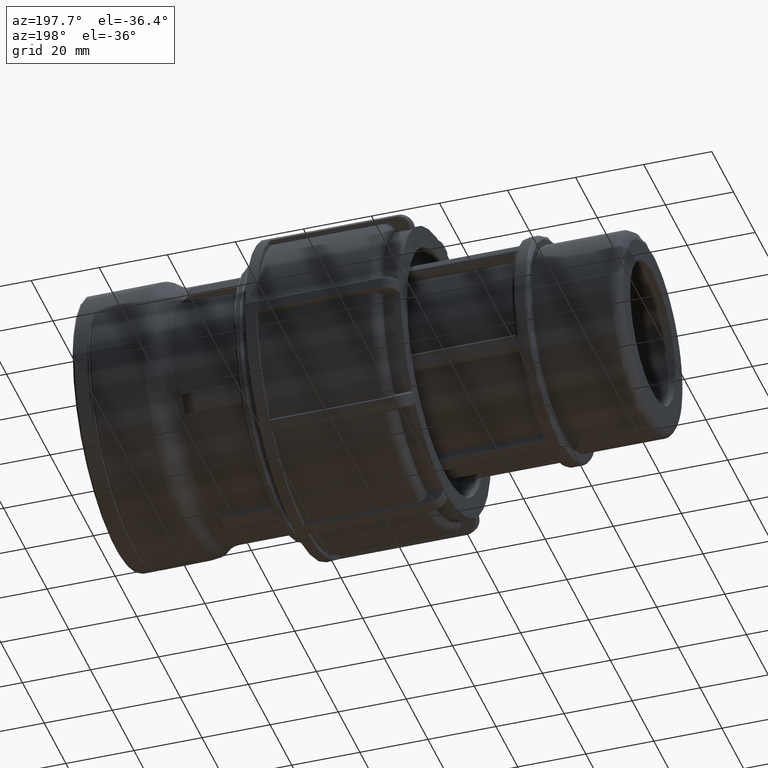
[diagram: clean part render]
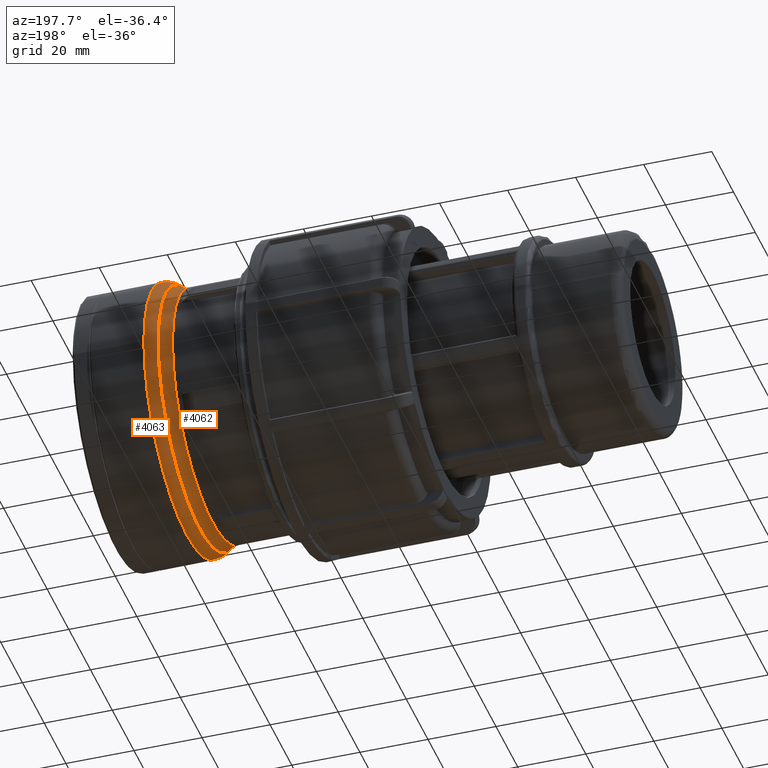
[diagram: same view with one multi-face feature highlighted, each face labeled with its STEP entity id]
A machine part, auxiliary view. The highlighted faces form ONE feature: a constant-radius fillet chain: 2 tangent blend faces with common blend radius 5.6656 mm. The faces share edges in the B-rep.
Their STEP definitions:
[1] entity #4062 (Torus):
#55=FACE_BOUND('',#1068,.T.);
#819=FACE_OUTER_BOUND('',#1067,.T.);
#1067=EDGE_LOOP('',(#3096));
#1068=EDGE_LOOP('',(#3097));
#1473=CIRCLE('',#4326,36.8264);
#1484=CIRCLE('',#4372,38.2428);
#1791=VERTEX_POINT('',#6424);
#1815=VERTEX_POINT('',#6694);
#2242=EDGE_CURVE('',#1791,#1791,#1473,.T.);
#2295=EDGE_CURVE('',#1815,#1815,#1484,.T.);
#3096=ORIENTED_EDGE('',*,*,#2242,.T.);
#3097=ORIENTED_EDGE('',*,*,#2295,.T.);
#3973=TOROIDAL_SURFACE('',#4371,42.492,5.6656);
#4062=ADVANCED_FACE('',(#819,#55),#3973,.F.);
#4326=AXIS2_PLACEMENT_3D('',#6425,#4933,#4934);
#4371=AXIS2_PLACEMENT_3D('',#6693,#5051,#5052);
#4372=AXIS2_PLACEMENT_3D('',#6695,#5053,#5054);
#4933=DIRECTION('center_axis',(1.,0.,0.));
#4934=DIRECTION('ref_axis',(0.,1.,-6.12323399573677E-17));
#5051=DIRECTION('center_axis',(1.,0.,0.));
#5052=DIRECTION('ref_axis',(0.,0.,-1.));
#5053=DIRECTION('center_axis',(-1.,0.,0.));
#5054=DIRECTION('ref_axis',(0.,1.,-6.12323399573677E-17));
#6424=CARTESIAN_POINT('',(-28.5883307863026,-36.8264,-2.254966644206E-15));
#6425=CARTESIAN_POINT('Origin',(-28.5883307863026,0.,0.));
#6693=CARTESIAN_POINT('Origin',(-28.5883307863026,0.,0.));
#6694=CARTESIAN_POINT('',(-24.8408886293108,-38.2428,7.02508839156486E-15));
#6695=CARTESIAN_POINT('Origin',(-24.8408886293108,0.,0.));
[2] entity #4063 (Torus):
#56=FACE_BOUND('',#1070,.T.);
#820=FACE_OUTER_BOUND('',#1069,.T.);
#1069=EDGE_LOOP('',(#3098));
#1070=EDGE_LOOP('',(#3099));
#1484=CIRCLE('',#4372,38.2428);
#1485=CIRCLE('',#4374,39.6592);
#1815=VERTEX_POINT('',#6694);
#1816=VERTEX_POINT('',#6697);
#2295=EDGE_CURVE('',#1815,#1815,#1484,.T.);
#2296=EDGE_CURVE('',#1816,#1816,#1485,.T.);
#3098=ORIENTED_EDGE('',*,*,#2295,.F.);
#3099=ORIENTED_EDGE('',*,*,#2296,.T.);
#3974=TOROIDAL_SURFACE('',#4373,33.9936,5.6656);
#4063=ADVANCED_FACE('',(#820,#56),#3974,.T.);
#4372=AXIS2_PLACEMENT_3D('',#6695,#5053,#5054);
#4373=AXIS2_PLACEMENT_3D('',#6696,#5055,#5056);
#4374=AXIS2_PLACEMENT_3D('',#6698,#5057,#5058);
#5053=DIRECTION('center_axis',(-1.,0.,0.));
#5054=DIRECTION('ref_axis',(0.,1.,-6.12323399573677E-17));
#5055=DIRECTION('center_axis',(1.,0.,0.));
#5056=DIRECTION('ref_axis',(0.,1.,-1.85604082780806E-16));
#5057=DIRECTION('center_axis',(-1.,0.,0.));
#5058=DIRECTION('ref_axis',(0.,1.,-1.85604082780806E-16));
#6694=CARTESIAN_POINT('',(-24.8408886293108,-38.2428,7.02508839156486E-15));
#6695=CARTESIAN_POINT('Origin',(-24.8408886293108,0.,0.));
#6696=CARTESIAN_POINT('Origin',(-21.0934464723189,0.,0.));
#6697=CARTESIAN_POINT('',(-21.0934464723189,-39.6592,1.2217760673495E-14));
#6698=CARTESIAN_POINT('Origin',(-21.0934464723189,0.,0.));